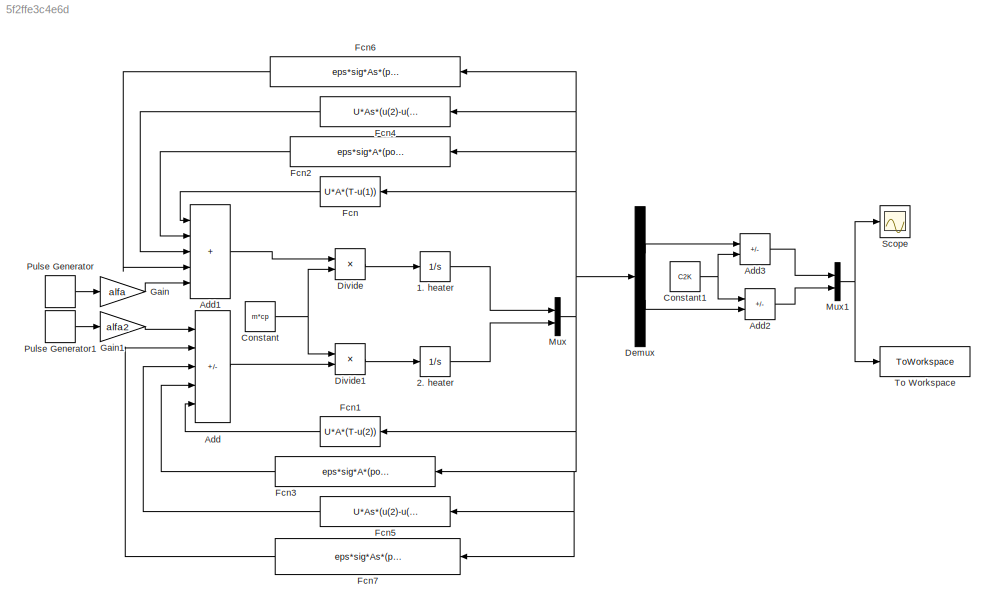
MODEL slx_5f2ffe3c4e6d
KIND model
CONFIG AbsTol = auto
CONFIG EnableMultiTasking = off
CONFIG FixedStep = 1
CONFIG MaxStep = auto
CONFIG MinStep = auto
CONFIG RelTol = 1e-3
CONFIG SampleTimeConstraint = Unconstrained
CONFIG SolverName = FixedStepAuto
CONFIG StartTime = 0.0
CONFIG StopTime = 600
BLOCK [Integrator] 1. heater
  InitialCondition = t0
BLOCK [Integrator] 2. heater
  InitialCondition = t0
BLOCK [Sum] Add
  IconShape = rectangular
  Inputs = +--++
BLOCK [Sum] Add1
  IconShape = rectangular
  Inputs = +++++
BLOCK [Sum] Add2
  IconShape = rectangular
  Inputs = -+
BLOCK [Sum] Add3
  IconShape = rectangular
  Inputs = +-
BLOCK [Constant] Constant
  Value = m*cp
BLOCK [Constant] Constant1
  Value = C2K
BLOCK [Demux] Demux
  Outputs = 2
BLOCK [Product] Divide
  Inputs = */
BLOCK [Product] Divide1
  Inputs = /*
BLOCK [Fcn] Fcn
  Expr = U*A*(T-u(1))
  NameLocation = top
BLOCK [Fcn] Fcn1
  Expr = U*A*(T-u(2))
  NameLocation = top
BLOCK [Fcn] Fcn2
  Expr = eps*sig*A*(pow(T,4)-pow(u(1),4))
  NameLocation = top
BLOCK [Fcn] Fcn3
  Expr = eps*sig*A*(pow(T,4)-pow(u(2),4))
  NameLocation = top
BLOCK [Fcn] Fcn4
  Expr = U*As*(u(2)-u(1))
  NameLocation = top
BLOCK [Fcn] Fcn5
  Expr = U*As*(u(2)-u(1))
  NameLocation = top
BLOCK [Fcn] Fcn6
  Expr = eps*sig*As*(pow(u(2),4)-pow(u(1),4))
  NameLocation = top
BLOCK [Fcn] Fcn7
  Expr = eps*sig*As*(pow(u(2),4)-pow(u(1),4))
  NameLocation = top
BLOCK [Gain] Gain
  Gain = alfa
BLOCK [Gain] Gain1
  Gain = alfa2
BLOCK [Mux] Mux
  DisplayOption = bar
  Inputs = 2
BLOCK [Mux] Mux1
  DisplayOption = bar
  Inputs = 2
BLOCK [DiscretePulseGenerator] Pulse Generator
  Period = 600
  PulseType = Time based
  PulseWidth = 99
BLOCK [DiscretePulseGenerator] Pulse Generator1
  Period = 600
  PhaseDelay = 300
  PulseType = Time based
  PulseWidth = 99
BLOCK [Scope] Scope
  Floating = off
  NumInputPorts = 1
  ScopeSpecificationString = Simulink.scopes.TimeScopeBlockCfg('CurrentConfiguration', extmgr.ConfigurationSet(extmgr.Configuration('Core','General UI',true),extmgr.Configuration('Core','Source UI',true),extmgr.Configuration('Sources','WiredSimulink',true),extmgr.Configuration('Visuals','Time Domain',true,'SerializedDisplays',{struct('MinYLimReal','22.88981','MaxYLimReal','23.99174','YLabelReal','','MinYLimMag','22.88981','Ma...<+1337ch>
BLOCK [ToWorkspace] To Workspace
  FixptAsFi = on
  MaxDataPoints = inf
  SampleTime = -1
  SaveFormat = Structure With Time
  VariableName = simout
LINE 1. heater:1 -> Mux:1
LINE 2. heater:1 -> Mux:2
LINE Add1:1 -> Divide:1
LINE Add2:1 -> Mux1:2
LINE Add3:1 -> Mux1:1
LINE Add:1 -> Divide1:2
NET Constant1:1 -> Add2:1, Add3:2
NET Constant:1 -> Divide1:1, Divide:2
LINE Demux:1 -> Add3:1
LINE Demux:2 -> Add2:2
LINE Divide1:1 -> 2. heater:1
LINE Divide:1 -> 1. heater:1
LINE Fcn1:1 -> Add:5
LINE Fcn2:1 -> Add1:2
LINE Fcn3:1 -> Add:4
LINE Fcn4:1 -> Add1:3
LINE Fcn5:1 -> Add:3
LINE Fcn6:1 -> Add1:4
LINE Fcn7:1 -> Add:2
LINE Fcn:1 -> Add1:1
LINE Gain1:1 -> Add:1
LINE Gain:1 -> Add1:5
NET Mux1:1 -> Scope:1, To Workspace:1
NET Mux:1 -> Demux:1, Fcn1:1, Fcn2:1, Fcn3:1, Fcn4:1, Fcn5:1, Fcn6:1, Fcn7:1, Fcn:1
LINE Pulse Generator1:1 -> Gain1:1
LINE Pulse Generator:1 -> Gain:1
note: NET lines group one-source signal fan-out (src -> all destinations, sorted); 1:1 wires keep LINE
